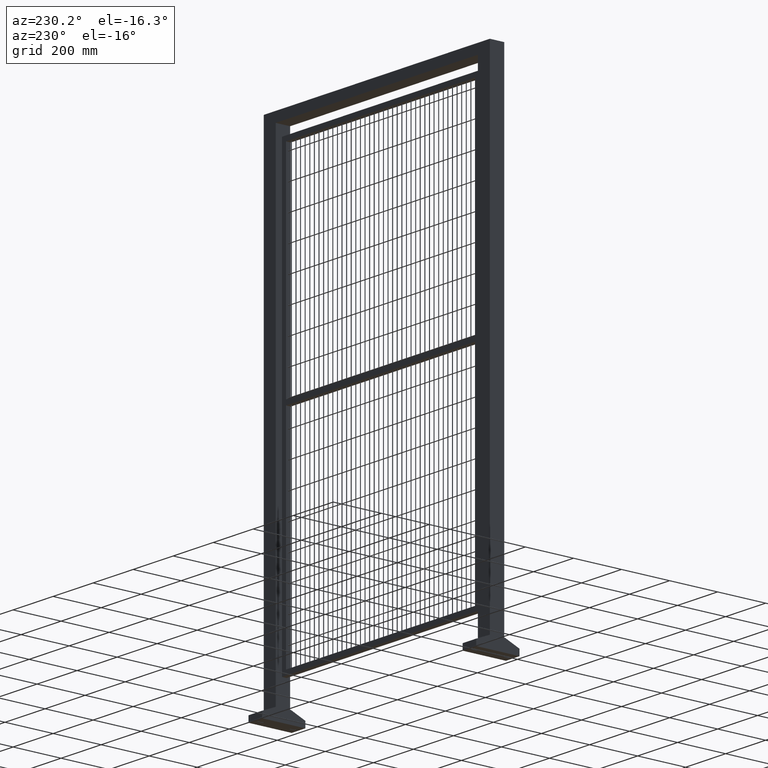
[diagram: clean part render]
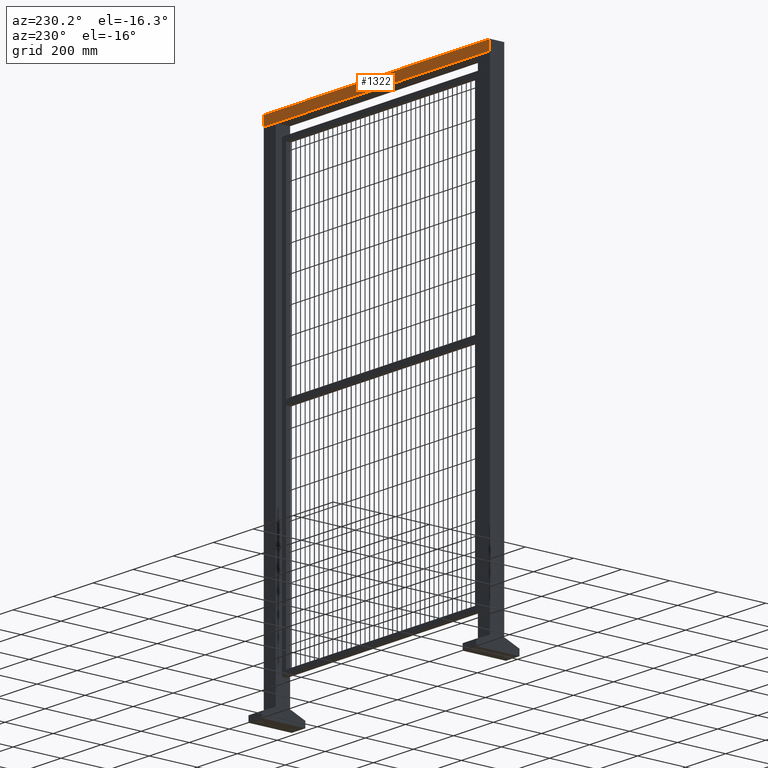
[diagram: same view with one face highlighted and labeled with its STEP entity id]
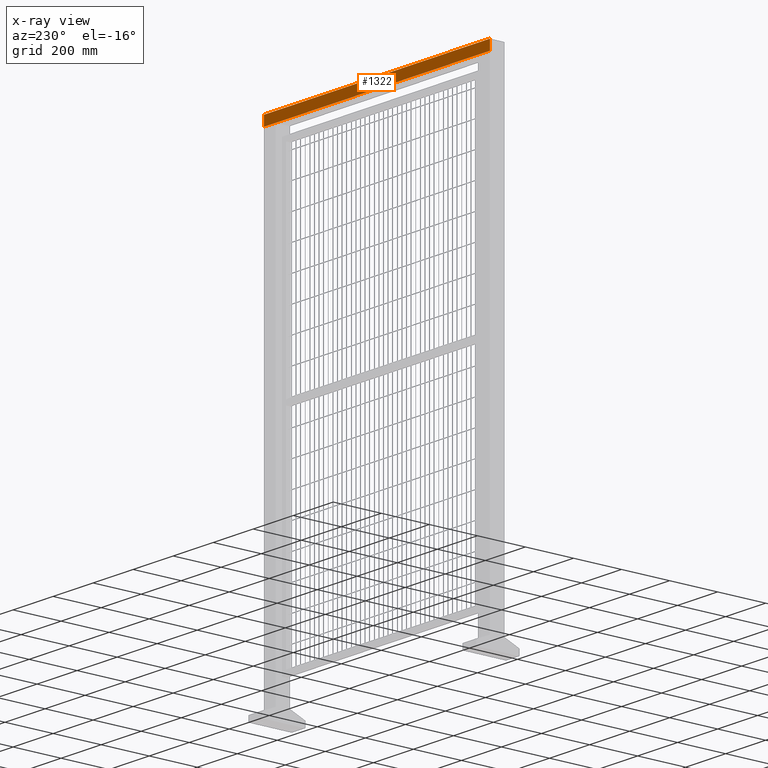
[diagram: x-ray of the same camera — body ghosted, the highlighted face saturated]
A machine part, auxiliary view. The second image highlights one B-rep face of the part: STEP entity #1322.
The next image is the same camera in x-ray: the body ghosted, the highlighted face saturated — about 0% of this face is hidden behind the body in this view.
In plain terms, the highlighted planar face has unit normal (0, -1, 0).
Its self-contained STEP definition (entity closure, byte-faithful):
#156=LINE('',#4542,#250);
#160=LINE('',#4551,#254);
#163=LINE('',#4557,#257);
#166=LINE('',#4563,#260);
#250=VECTOR('',#3909,1.);
#254=VECTOR('',#3915,1.);
#257=VECTOR('',#3920,1.);
#260=VECTOR('',#3925,1.);
#957=PLANE('',#3144);
#1106=FACE_OUTER_BOUND('',#1817,.T.);
#1322=ADVANCED_FACE('',(#1106),#957,.F.);
#1817=EDGE_LOOP('',(#2258,#2259,#2260,#2261));
#2258=ORIENTED_EDGE('',*,*,#2660,.F.);
#2259=ORIENTED_EDGE('',*,*,#2670,.F.);
#2260=ORIENTED_EDGE('',*,*,#2667,.F.);
#2261=ORIENTED_EDGE('',*,*,#2664,.F.);
#2442=VERTEX_POINT('',#4543);
#2443=VERTEX_POINT('',#4544);
#2446=VERTEX_POINT('',#4552);
#2448=VERTEX_POINT('',#4558);
#2660=EDGE_CURVE('',#2442,#2443,#156,.T.);
#2664=EDGE_CURVE('',#2443,#2446,#160,.T.);
#2667=EDGE_CURVE('',#2446,#2448,#163,.T.);
#2670=EDGE_CURVE('',#2448,#2442,#166,.T.);
#3144=AXIS2_PLACEMENT_3D('',#4567,#3931,#3932);
#3909=DIRECTION('',(-1.,0.,0.));
#3915=DIRECTION('',(0.,0.,-1.));
#3920=DIRECTION('',(1.,0.,1.83697019872103E-16));
#3925=DIRECTION('',(0.,0.,1.));
#3931=DIRECTION('',(0.,-1.,0.));
#3932=DIRECTION('',(0.,0.,-1.));
#4542=CARTESIAN_POINT('',(564.999999999993,30.,40.));
#4543=CARTESIAN_POINT('',(564.999999999993,30.,40.));
#4544=CARTESIAN_POINT('',(-564.999999999993,30.,40.));
#4551=CARTESIAN_POINT('',(-564.999999999993,30.,40.));
#4552=CARTESIAN_POINT('',(-564.999999999993,30.,0.));
#4557=CARTESIAN_POINT('',(-564.999999999993,30.,0.));
#4558=CARTESIAN_POINT('',(564.999999999993,30.,2.07577632455474E-13));
#4563=CARTESIAN_POINT('',(564.999999999993,30.,0.));
#4567=CARTESIAN_POINT('',(0.,30.,0.));